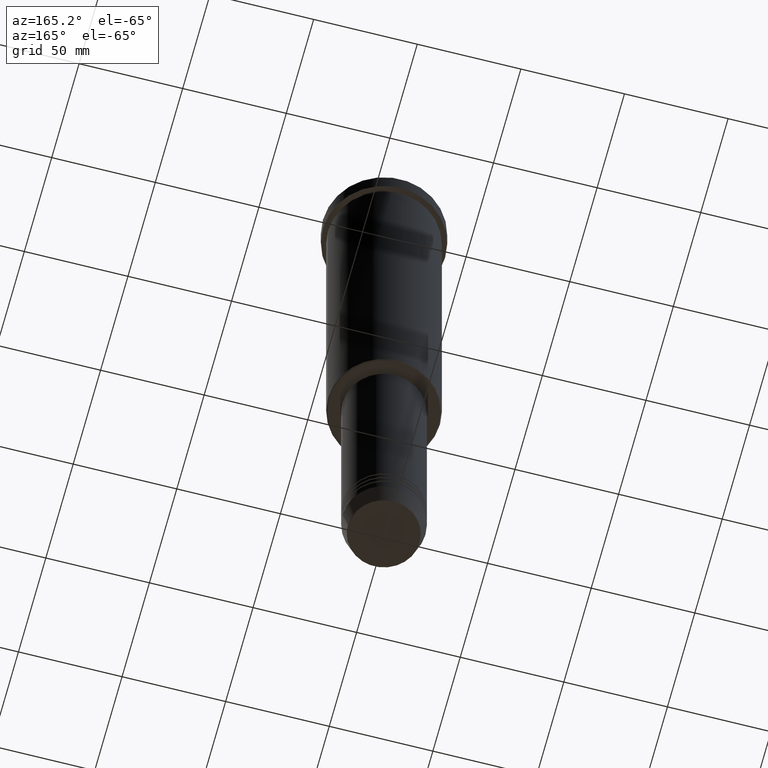
[diagram: clean part render]
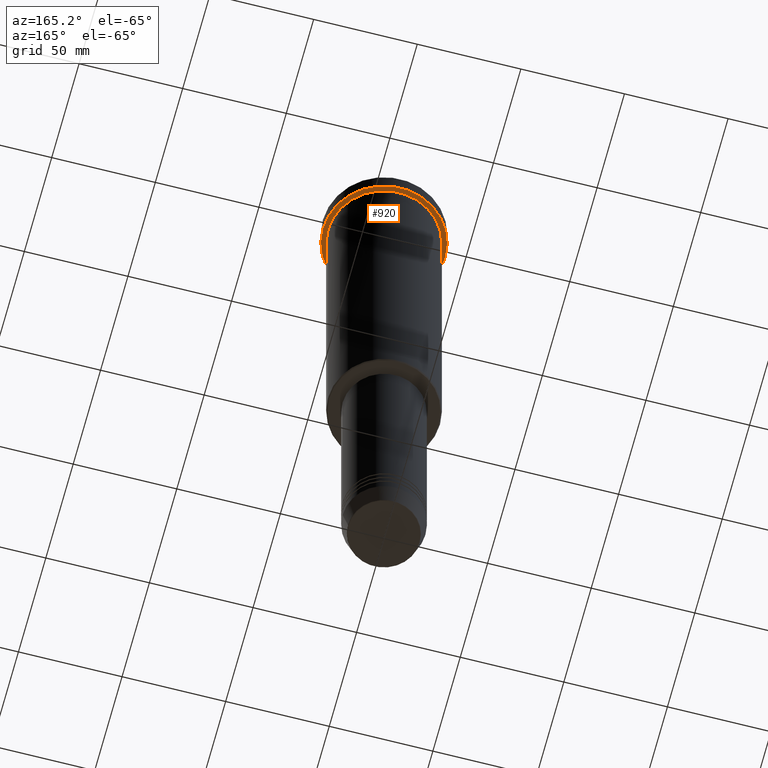
[diagram: same view with one face highlighted and labeled with its STEP entity id]
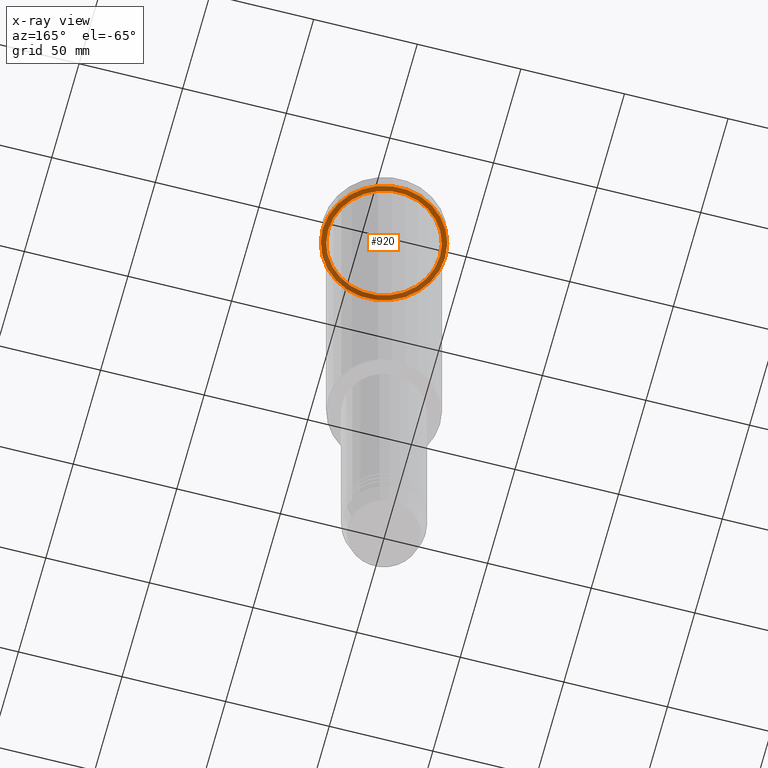
[diagram: x-ray of the same camera — body ghosted, the highlighted face saturated]
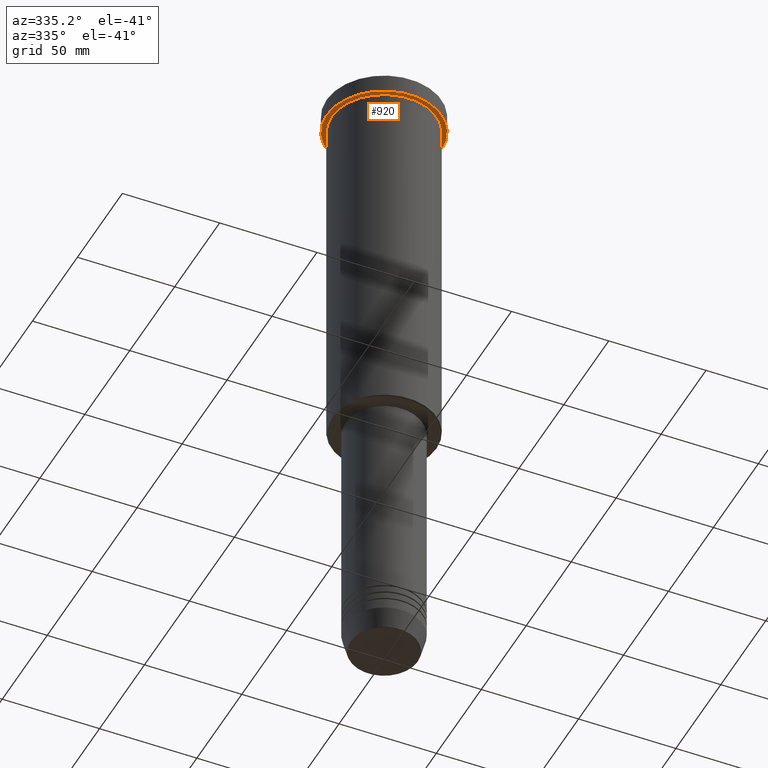
[diagram: same view with one face highlighted and labeled with its STEP entity id]
A machine part, auxiliary view. The second image highlights one B-rep face of the part: STEP entity #920.
The next image is the same camera in x-ray: the body ghosted, the highlighted face saturated — about 39% of this face is hidden behind the body in this view.
A second angle (auxiliary view) of the same face is appended — the face is thin or edge-on in the first view.
In plain terms, the highlighted planar face has unit normal (0, 0, -1).
Its self-contained STEP definition (entity closure, byte-faithful):
#17 = DIRECTION ( 'NONE',  ( -0.000000000000000000, -0.000000000000000000, 1.000000000000000000 ) ) ;
#37 = DIRECTION ( 'NONE',  ( 1.000000000000000000, 0.000000000000000000, 0.000000000000000000 ) ) ;
#45 = DIRECTION ( 'NONE',  ( -0.000000000000000000, -0.000000000000000000, 1.000000000000000000 ) ) ;
#46 = AXIS2_PLACEMENT_3D ( 'NONE', #1098, #271, #828 ) ;
#73 = AXIS2_PLACEMENT_3D ( 'NONE', #1010, #705, #180 ) ;
#108 = ORIENTED_EDGE ( 'NONE', *, *, #812, .T. ) ;
#112 = CIRCLE ( 'NONE', #778, 27.00000000000000355 ) ;
#148 = ORIENTED_EDGE ( 'NONE', *, *, #1044, .T. ) ;
#180 = DIRECTION ( 'NONE',  ( -1.000000000000000000, 0.000000000000000000, -0.000000000000000000 ) ) ;
#212 = EDGE_CURVE ( 'NONE', #497, #1099, #551, .T. ) ;
#242 = EDGE_CURVE ( 'NONE', #1099, #497, #1170, .T. ) ;
#271 = DIRECTION ( 'NONE',  ( -0.000000000000000000, -0.000000000000000000, 1.000000000000000000 ) ) ;
#284 = CARTESIAN_POINT ( 'NONE',  ( 27.00000000000000355, 3.306546357697854128E-15, -9.999999999999992895 ) ) ;
#356 = FACE_OUTER_BOUND ( 'NONE', #977, .T. ) ;
#429 = DIRECTION ( 'NONE',  ( -1.000000000000000000, 0.000000000000000000, 0.000000000000000000 ) ) ;
#433 = CARTESIAN_POINT ( 'NONE',  ( 0.000000000000000000, 0.000000000000000000, -9.999999999999992895 ) ) ;
#497 = VERTEX_POINT ( 'NONE', #696 ) ;
#551 = CIRCLE ( 'NONE', #46, 29.50000000000000000 ) ;
#557 = CARTESIAN_POINT ( 'NONE',  ( 29.50000000000000000, 0.000000000000000000, -9.999999999999992895 ) ) ;
#637 = ORIENTED_EDGE ( 'NONE', *, *, #242, .F. ) ;
#696 = CARTESIAN_POINT ( 'NONE',  ( -29.50000000000000000, 3.612708057484691604E-15, -9.999999999999992895 ) ) ;
#705 = DIRECTION ( 'NONE',  ( 0.000000000000000000, 0.000000000000000000, -1.000000000000000000 ) ) ;
#719 = PLANE ( 'NONE',  #73 ) ;
#778 = AXIS2_PLACEMENT_3D ( 'NONE', #1042, #17, #947 ) ;
#803 = EDGE_LOOP ( 'NONE', ( #108, #148 ) ) ;
#808 = VERTEX_POINT ( 'NONE', #970 ) ;
#811 = DIRECTION ( 'NONE',  ( -0.000000000000000000, -0.000000000000000000, 1.000000000000000000 ) ) ;
#812 = EDGE_CURVE ( 'NONE', #808, #1035, #1016, .T. ) ;
#828 = DIRECTION ( 'NONE',  ( 1.000000000000000000, 0.000000000000000000, 0.000000000000000000 ) ) ;
#920 = ADVANCED_FACE ( 'NONE', ( #1090, #356 ), #719, .T. ) ;
#924 = ORIENTED_EDGE ( 'NONE', *, *, #212, .F. ) ;
#947 = DIRECTION ( 'NONE',  ( -1.000000000000000000, 0.000000000000000000, 0.000000000000000000 ) ) ;
#970 = CARTESIAN_POINT ( 'NONE',  ( -27.00000000000000355, 0.000000000000000000, -9.999999999999992895 ) ) ;
#977 = EDGE_LOOP ( 'NONE', ( #637, #924 ) ) ;
#1010 = CARTESIAN_POINT ( 'NONE',  ( 0.000000000000000000, 29.50000000000000000, -9.999999999999992895 ) ) ;
#1016 = CIRCLE ( 'NONE', #1138, 27.00000000000000355 ) ;
#1035 = VERTEX_POINT ( 'NONE', #284 ) ;
#1042 = CARTESIAN_POINT ( 'NONE',  ( 0.000000000000000000, 0.000000000000000000, -9.999999999999992895 ) ) ;
#1044 = EDGE_CURVE ( 'NONE', #1035, #808, #112, .T. ) ;
#1061 = CARTESIAN_POINT ( 'NONE',  ( 0.000000000000000000, 0.000000000000000000, -9.999999999999992895 ) ) ;
#1090 = FACE_BOUND ( 'NONE', #803, .T. ) ;
#1098 = CARTESIAN_POINT ( 'NONE',  ( 0.000000000000000000, 0.000000000000000000, -9.999999999999992895 ) ) ;
#1099 = VERTEX_POINT ( 'NONE', #557 ) ;
#1138 = AXIS2_PLACEMENT_3D ( 'NONE', #433, #811, #429 ) ;
#1153 = AXIS2_PLACEMENT_3D ( 'NONE', #1061, #45, #37 ) ;
#1170 = CIRCLE ( 'NONE', #1153, 29.50000000000000000 ) ;